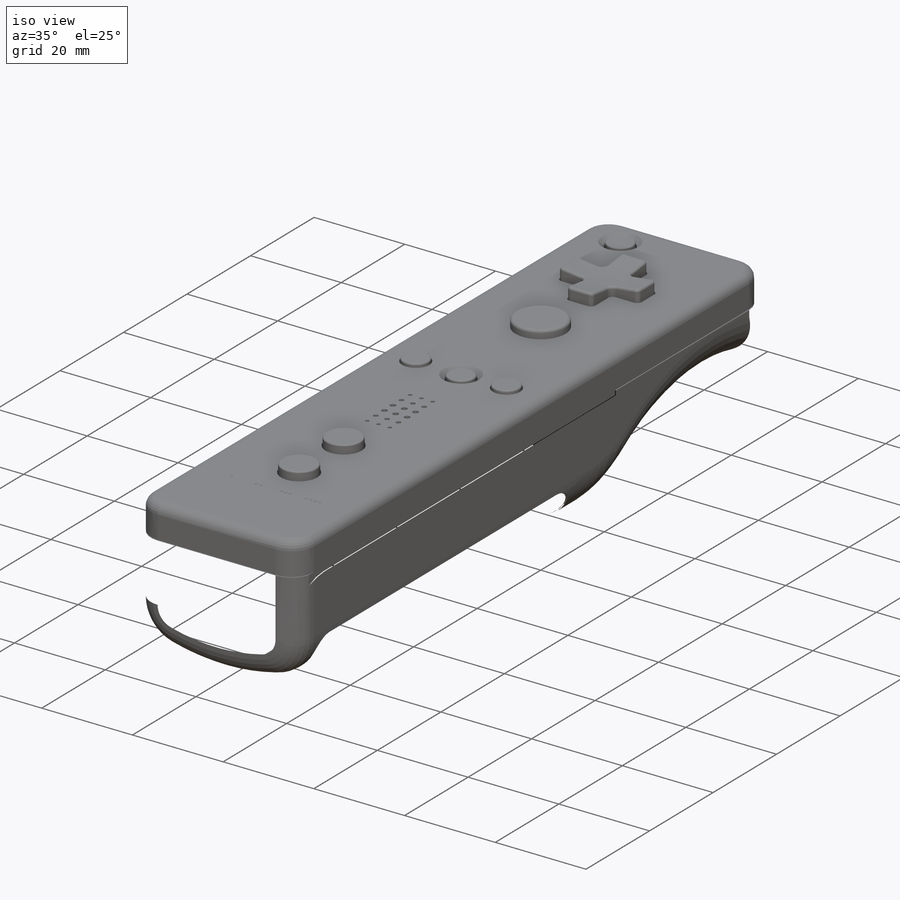
[diagram: iso view]
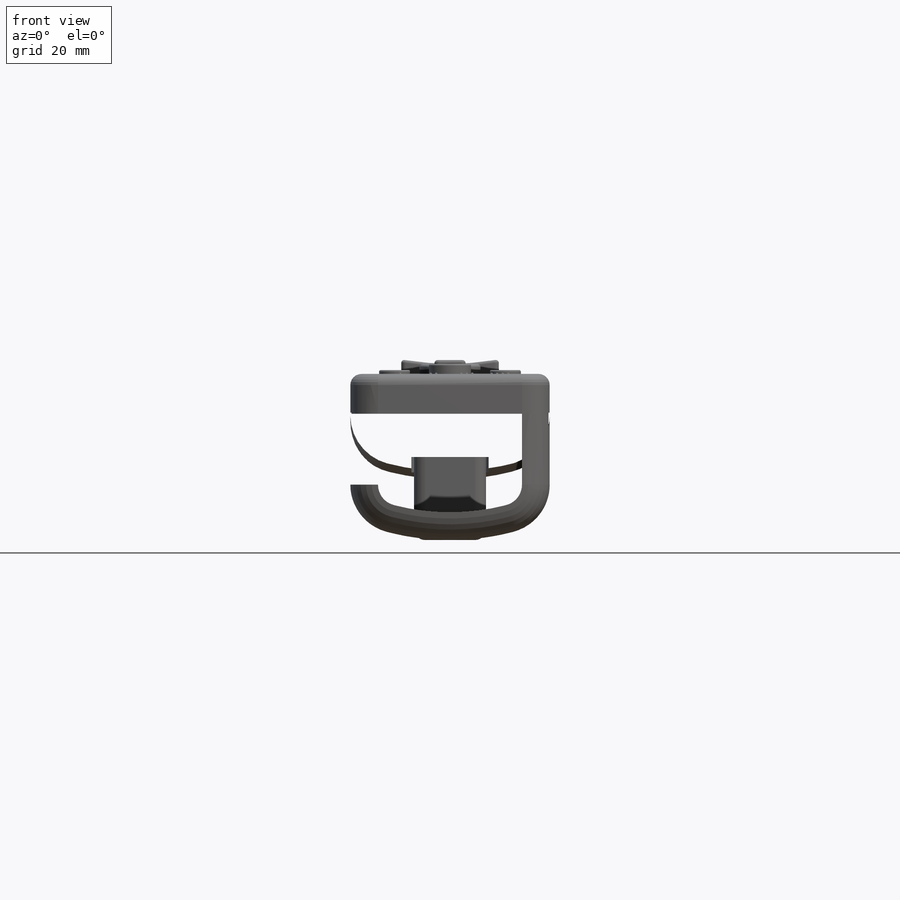
[diagram: front view]
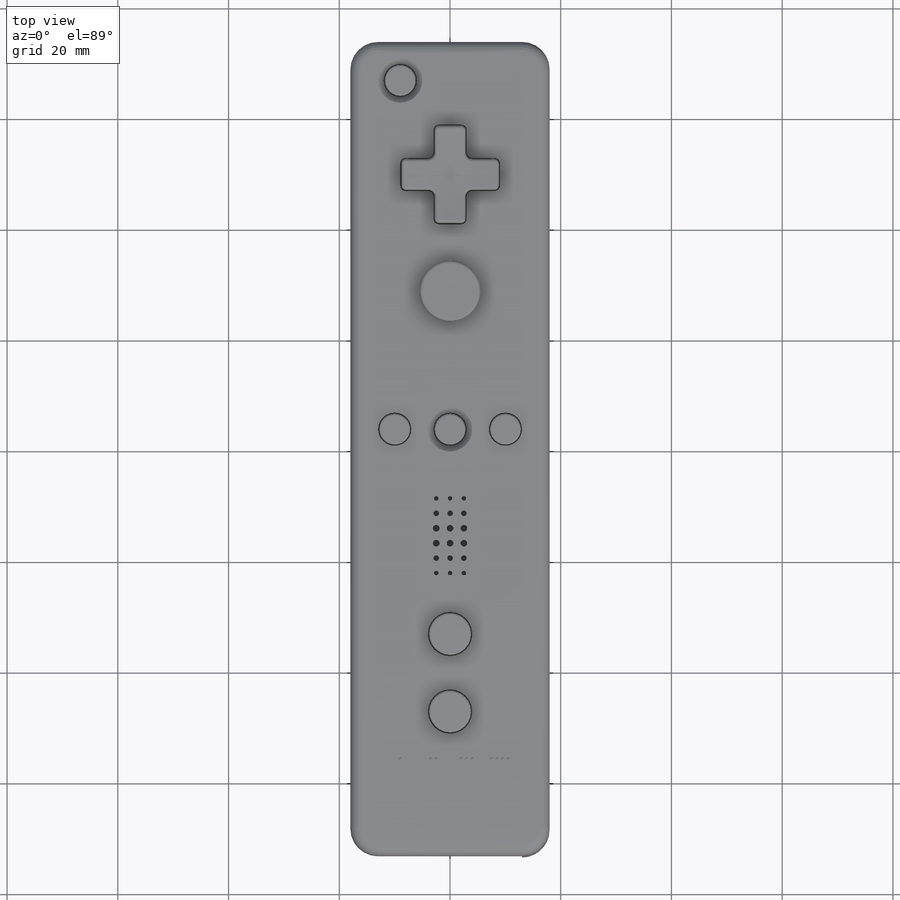
[diagram: top view]
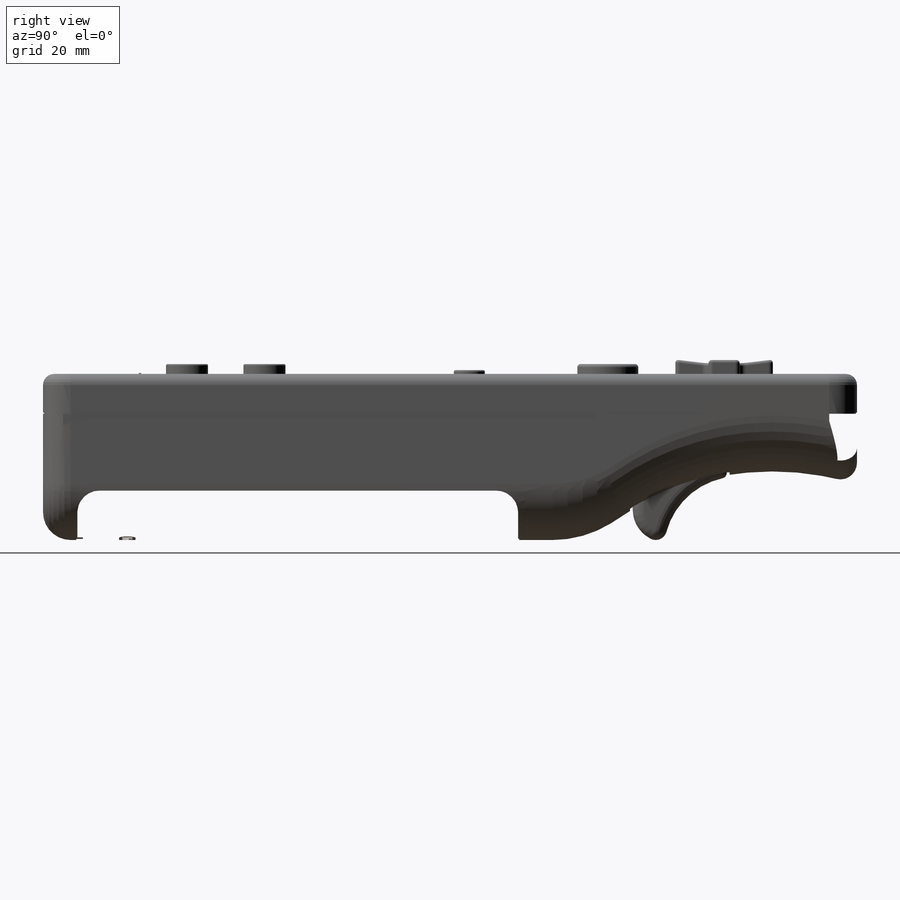
[diagram: right view]
SOLIDWORKS PART (.sldprt)
format: sldprt  version: not decoded by parser v0  size: 2,532,864 bytes
history: native  units: mm
features: sketch x33, extrude x13, fillet x9, cut_extrude x9, plane x2, material x1, chamfer x1, cut_revolve x1, mirror x1 (+13 scaffold rows collapsed)
feature tree (83):
  scaffold x13  (default folders/planes/origin — collapsed)
  material  "Material <not specified>"
  sketch  "Sketch1"  dims[D4=40.0mm D5=100.0mm D1=147.0mm D2=30.0mm D3=55.0mm D6=20.0mm]
  extrude  "Boss-Extrude1"  Depth=36mm
  sketch  "Sketch2"  dims[D1=20.0mm D2=1.5mm D3=5.0mm D4=5.0mm D5=15.0mm]
  sketch  "Sketch3"  dims[D1=90.0mm D2=18.0mm D3=5.0mm D4=5.0mm D5=15.0mm]
  sketch  "Sketch4"
  fillet  "Fillet1"  Radius=5mm
  fillet  "Fillet2"  Radius=3mm
  fillet  "Fillet3"  Radius=2mm
  sketch  "Sketch5"  dims[D1=6.0mm D5=8.0mm D8=0.8mm D9=1.0mm D10=1.2mm D18=1.0mm D19=11.0mm D2=20.0mm D3=9.0mm D4=66.5mm D6=5.0mm D7=13.5mm D11=2.7mm D12=2.7mm D13=2.5mm D14=2.0mm D15=18.0mm D16=6.0mm D17=18.0mm]
  cut_extrude  "Cut-Extrude1"  Depth=3mm
  chamfer  "Chamfer1"  Distance=1mm Angle=45deg
  sketch  "Sketch6"  dims[D1=1.5mm]
  extrude  "Boss-Extrude2"  Depth=0.2mm
  sketch  "Sketch7"
  extrude  "Boss-Extrude3"  Depth=4.8mm
  fillet  "Fillet5"  Radius=0.6mm
  sketch  "Sketch8"  dims[D2=0.5mm D1=1.5mm D3=0.5mm D4=1.0mm D5=1.5mm D6=0.5mm]
  extrude  "Boss-Extrude4"  Depth=0.2mm
  fillet  "Fillet6"  Radius=0.2mm
  sketch  "Sketch9"
  extrude  "Boss-Extrude5"  [1 undecoded]
  sketch  "Sketch10"  dims[D1=0.2mm]
  extrude  "Boss-Extrude6"  Depth=4.8mm
  sketch  "Sketch11"  dims[D1=0.2mm]
  extrude  "Boss-Extrude7"  Depth=3.7mm
  sketch  "Sketch12"  dims[D1=0.2mm D2=0.2mm]
  extrude  "Boss-Extrude8"  Depth=3mm
  sketch  "Sketch13"  dims[D1=0.2mm]
  extrude  "Boss-Extrude9"  Depth=5.8mm
  sketch  "Sketch14"  dims[D1=1.0mm D2=10.0mm]
  cut_revolve  "Cut-Revolve1"  Angle=360deg
  fillet  "Fillet7"  Radius=0.5mm
  sketch  "Sketch15"  dims[D3=0.15mm D1=1.8mm D2=0.3mm]
  sketch  "Sketch16"  dims[D1=3.0mm D2=0.3mm D3=6.5mm D5=3.5mm D6=0.3mm D4=4.0 Split Line2=66982.0]
  sketch  "Sketch17"  dims[D1=7.6mm D2=1.5mm D3=1.5mm D4=1.25mm D5=0.15mm D6=0.3mm D7=1.25mm D8=1.25mm D9=0.3mm D10=0.15mm D11=1.25mm D12=1.25mm Split Line3=65536.0]
  sketch  "Sketch18"  dims[Split Line4=65536.0]
  fillet  "Fillet8"  Radius=0.3mm
  sketch  "Sketch19"  dims[D1=8.0mm D2=4.0mm D3=6.0mm Split Line5=65536.0]
  plane  "Plane1"  Offset=30mm
  sketch  "Sketch20"  dims[D5=1.0mm D1=13.0mm D2=14.0mm D3=18.0mm D4=23.0mm]
  cut_extrude  "Cut-Extrude6"  Depth=15mm
  sketch  "Sketch21"  dims[D3=27.0mm D4=4.0mm D1=9.4mm D2=3.7mm]
  extrude  "Boss-Extrude10"  Depth=13mm
  fillet  "Fillet9"  Radius=1mm
  fillet  "Fillet10"  Radius=2mm
  sketch  "Sketch22"  dims[D1=0.2mm]
  cut_extrude  "Cut-Extrude7"  Depth=0.2mm
  sketch  "Sketch23"  dims[D5=20.0mm D1=1.0mm D2=47.0mm D3=3.0mm D4=2.5mm]
  cut_extrude  "Cut-Extrude8"  Depth=0.2mm
  mirror  "Mirror1"
  sketch  "Sketch24"  dims[D3=2.0mm D4=4.0mm D5=4.0mm D1=4.0mm D2=22.0mm]
  extrude  "Boss-Extrude11"  Depth=0.2mm Split Line6=65536
  sketch  "Sketch24<2>"
  sketch  "Sketch26"  dims[D3=0.5mm D1=20.0mm D2=11.0mm]
  cut_extrude  "Cut-Extrude10"  Depth=5mm
  plane  "Plane2"
  sketch  "Sketch27"  dims[D1=1.5mm Split Line7=65536.0]
  sketch  "Sketch28"  dims[D7=4.0mm D1=0.2mm D2=0.2mm D3=0.2mm D4=~9.132608mm D5=6.0mm D6=80.0mm]
  cut_extrude  "Cut-Extrude11"  Depth=10mm
  sketch  "Sketch29"  dims[D1=0.2mm]
  extrude  "Boss-Extrude12"  Depth=80mm
  sketch  "Sketch30"  dims[D3=1.0mm D1=10.0mm D2=5.0mm]
  cut_extrude  "Cut-Extrude12"  Depth=0.2mm
  sketch  "Sketch31"  dims[D2=1.0mm D1=0.0mm]
  cut_extrude  "Cut-Extrude13"  Depth=6mm
  sketch  "Sketch32"  dims[c1.D5=0.2mm c1.D6=0.45mm c2.D5=0.8mm c2.D6=0.8mm c2.D1=0.25mm c2.D2=0.25mm c2.D3=1.2mm c3.D1=~5.098112mm c4.D1=~0.292311deg c5.D1=0.25mm c5.D4=0.25mm c6.D1=0.25mm c6.D4=0.25mm]
  extrude  "Boss-Extrude13"  Depth=7.5mm
  sketch  "Sketch34"  dims[D1=6.0mm]
  cut_extrude  "Cut-Extrude15"  Depth=0.2mm
decode coverage: 61 of 67 modeling features carry decoded parameters
note: ~ marks probable driven/reference dimensions
note: 1 parameter value undecoded
note: suppression state not decoded; provenance and decode notes live in map.json
